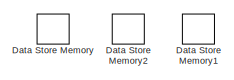
[diagram: root canvas - part 1/3, top right region]
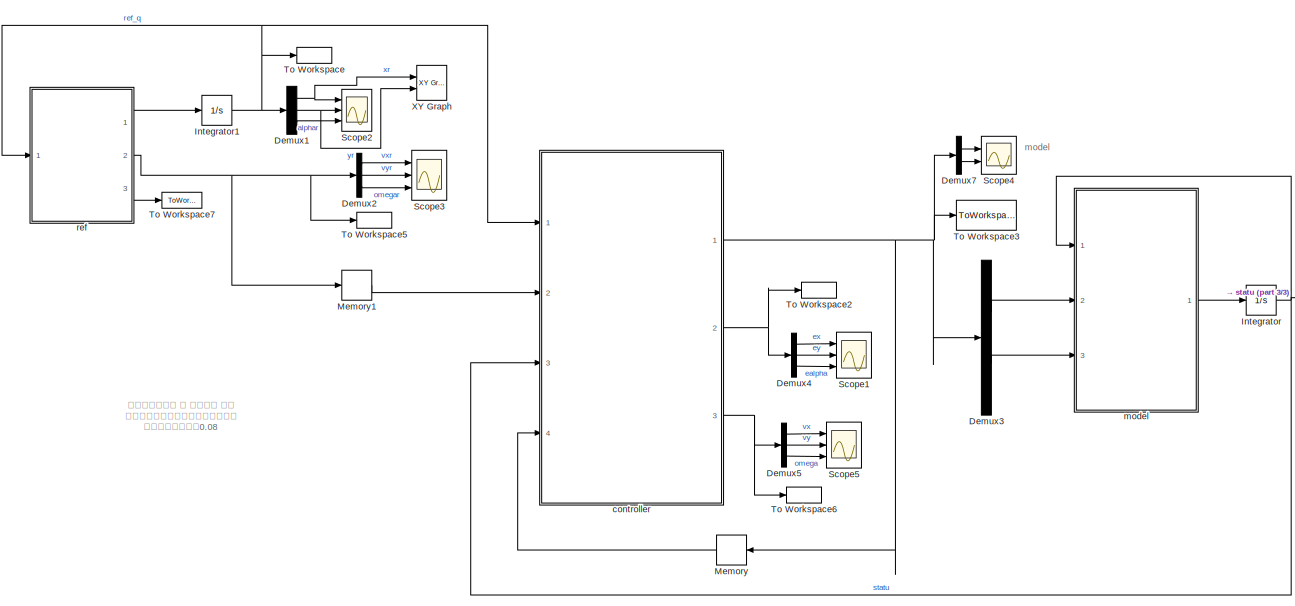
[diagram: root canvas - part 2/3, center side, full height]
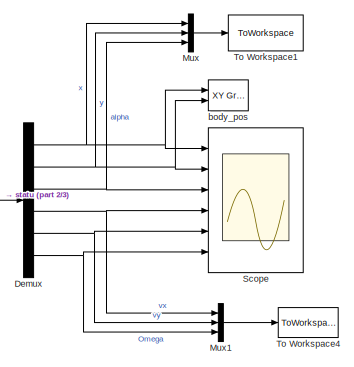
[diagram: root canvas - part 3/3, middle right region]
MODEL slx_6b4d675da11d
KIND model
CONFIG AbsTol = auto
CONFIG EnableMultiTasking = off
CONFIG FixedStep = 0.001
CONFIG MaxStep = 0.001
CONFIG MinStep = auto
CONFIG RelTol = 1e-3
CONFIG SampleTimeConstraint = Unconstrained
CONFIG Solver = ode45
CONFIG SolverName = ode45
CONFIG StartTime = 0.0
CONFIG StopTime = 20
BLOCK [DataStoreMemory] Data Store Memory
  DataStoreName = d
  OutDataTypeStr = double
  ReadBeforeWriteMsg = warning
  ShowAdditionalParam = off
  SignalType = real
  WriteAfterReadMsg = warning
  WriteAfterWriteMsg = warning
BLOCK [DataStoreMemory] Data Store Memory1
  DataStoreName = wheel_radius
  OutDataTypeStr = double
  ReadBeforeWriteMsg = warning
  ShowAdditionalParam = off
  SignalType = real
  WriteAfterReadMsg = warning
  WriteAfterWriteMsg = warning
BLOCK [DataStoreMemory] Data Store Memory2
  DataStoreName = l
  OutDataTypeStr = double
  ReadBeforeWriteMsg = warning
  ShowAdditionalParam = off
  SignalType = real
  WriteAfterReadMsg = warning
  WriteAfterWriteMsg = warning
BLOCK [Demux] Demux
  DisplayOption = bar
  Outputs = 6
  Ports = [1, 6]
BLOCK [Demux] Demux1
  DisplayOption = bar
  Outputs = 3
  Ports = [1, 3]
BLOCK [Demux] Demux2
  DisplayOption = bar
  Outputs = 3
  Ports = [1, 3]
BLOCK [Demux] Demux3
  DisplayOption = bar
  Outputs = 2
  Ports = [1, 2]
BLOCK [Demux] Demux4
  DisplayOption = bar
  Outputs = 3
  Ports = [1, 3]
BLOCK [Demux] Demux5
  DisplayOption = bar
  Outputs = 3
  Ports = [1, 3]
BLOCK [Demux] Demux7
  DisplayOption = bar
  Outputs = 2
  Ports = [1, 2]
BLOCK [Integrator] Integrator
  IgnoreLimit = on
  InitialCondition = [2; -2; pi/2; 0.0001; 0; 0]
  Ports = [1, 1]
BLOCK [Integrator] Integrator1
  InitialCondition = [0;0;pi/4]
  Ports = [1, 1]
BLOCK [Memory] Memory
  X0 = [0; 0]
BLOCK [Memory] Memory1
  X0 = [2; 0; 0.5]
BLOCK [Mux] Mux
  DisplayOption = bar
  Inputs = 3
  Ports = [3, 1]
BLOCK [Mux] Mux1
  DisplayOption = bar
  Inputs = 3
  Ports = [3, 1]
BLOCK [Scope] Scope
  NumInputPorts = 6
  Ports = [6]
  ScopeSpecificationString = Simulink.scopes.TimeScopeBlockCfg('CurrentConfiguration', extmgr.ConfigurationSet(extmgr.Configuration('Core','General UI',true),extmgr.Configuration('Core','Source UI',true),extmgr.Configuration('Sources','WiredSimulink',true,'DataLoggingVariableName','ScopeData1'),extmgr.Configuration('Visuals','Time Domain',true,'SerializedDisplays',{struct('MinYLimReal','0.10442','MaxYLimReal','7.84514','YLabe...<+2681ch>
BLOCK [Scope] Scope1
  NumInputPorts = 3
  Ports = [3]
  ScopeSpecificationString = Simulink.scopes.TimeScopeBlockCfg('CurrentConfiguration', extmgr.ConfigurationSet(extmgr.Configuration('Core','General UI',true),extmgr.Configuration('Core','Source UI',true),extmgr.Configuration('Sources','WiredSimulink',true,'DataLoggingVariableName','ScopeData2'),extmgr.Configuration('Visuals','Time Domain',true,'SerializedDisplays',{struct('MinYLimReal','-0.15654','MaxYLimReal','0.21482','YLab...<+2764ch>
BLOCK [Scope] Scope2
  NumInputPorts = 3
  Ports = [3]
  ScopeSpecificationString = Simulink.scopes.TimeScopeBlockCfg('CurrentConfiguration', extmgr.ConfigurationSet(extmgr.Configuration('Core','General UI',true),extmgr.Configuration('Core','Source UI',true),extmgr.Configuration('Sources','WiredSimulink',true,'DataLoggingVariableName','ScopeData3'),extmgr.Configuration('Visuals','Time Domain',true,'SerializedDisplays',{struct('MinYLimReal','-0.00539','MaxYLimReal','0.04853','YLab...<+2734ch>
BLOCK [Scope] Scope3
  NumInputPorts = 3
  Ports = [3]
  ScopeSpecificationString = Simulink.scopes.TimeScopeBlockCfg('CurrentConfiguration', extmgr.ConfigurationSet(extmgr.Configuration('Core','General UI',true),extmgr.Configuration('Core','Source UI',true),extmgr.Configuration('Sources','WiredSimulink',true,'DataLoggingVariableName','ScopeData4'),extmgr.Configuration('Visuals','Time Domain',true,'SerializedDisplays',{struct('MinYLimReal','0.9','MaxYLimReal','1.1','YLabelReal','...<+2734ch>
BLOCK [Scope] Scope4
  NumInputPorts = 2
  Ports = [2]
  ScopeSpecificationString = Simulink.scopes.TimeScopeBlockCfg('CurrentConfiguration', extmgr.ConfigurationSet(extmgr.Configuration('Core','General UI',true),extmgr.Configuration('Core','Source UI',true),extmgr.Configuration('Sources','WiredSimulink',true,'DataLoggingVariableName','ScopeData1'),extmgr.Configuration('Visuals','Time Domain',true,'SerializedDisplays',{struct('MinYLimReal','-3154.38477','MaxYLimReal','2134.35305'...<+2064ch>
BLOCK [Scope] Scope5
  NumInputPorts = 3
  Ports = [3]
  ScopeSpecificationString = Simulink.scopes.TimeScopeBlockCfg('CurrentConfiguration', extmgr.ConfigurationSet(extmgr.Configuration('Core','General UI',true),extmgr.Configuration('Core','Source UI',true),extmgr.Configuration('Sources','WiredSimulink',true,'DataLoggingVariableName','ScopeData1'),extmgr.Configuration('Visuals','Time Domain',true,'SerializedDisplays',{struct('MinYLimReal','-2.2833','MaxYLimReal','0.55966','YLabe...<+2803ch>
BLOCK [ToWorkspace] To Workspace
  FixptAsFi = on
  MaxDataPoints = inf
  Ports = [1]
  SampleTime = -1
  Save2DSignal = 3-D array (concatenate along third dimension)
  VariableName = ref_q
BLOCK [ToWorkspace] To Workspace1
  FixptAsFi = on
  MaxDataPoints = inf
  Ports = [1]
  SampleTime = -1
  Save2DSignal = 3-D array (concatenate along third dimension)
  VariableName = body_position
BLOCK [ToWorkspace] To Workspace2
  FixptAsFi = on
  MaxDataPoints = inf
  Ports = [1]
  SampleTime = -1
  Save2DSignal = 3-D array (concatenate along third dimension)
  VariableName = e_pos
BLOCK [ToWorkspace] To Workspace3
  FixptAsFi = on
  MaxDataPoints = inf
  Ports = [1]
  SampleTime = -1
  Save2DSignal = 3-D array (concatenate along third dimension)
  VariableName = control_u
BLOCK [ToWorkspace] To Workspace4
  FixptAsFi = on
  MaxDataPoints = inf
  Ports = [1]
  SampleTime = -1
  Save2DSignal = 3-D array (concatenate along third dimension)
  VariableName = body_vel
BLOCK [ToWorkspace] To Workspace5
  FixptAsFi = on
  MaxDataPoints = inf
  Ports = [1]
  SampleTime = -1
  Save2DSignal = 3-D array (concatenate along third dimension)
  VariableName = ref_vel
BLOCK [ToWorkspace] To Workspace6
  FixptAsFi = on
  MaxDataPoints = inf
  Ports = [1]
  SampleTime = -1
  Save2DSignal = 3-D array (concatenate along third dimension)
  VariableName = e_vel
BLOCK [ToWorkspace] To Workspace7
  FixptAsFi = on
  MaxDataPoints = inf
  Ports = [1]
  SampleTime = -1
  Save2DSignal = 3-D array (concatenate along third dimension)
  VariableName = ref_f
BLOCK [Reference] XY Graph  REF=simulink/Sinks/XY Graph
  Ports = [2]
  SourceBlock = simulink/Sinks/XY Graph
  SourceProductBaseCode = SL
  SourceProductName = Simulink
  SourceType = XY scope.
BLOCK [Reference] body_pos  REF=simulink/Sinks/XY Graph
  Ports = [2]
  SourceBlock = simulink/Sinks/XY Graph
  SourceProductBaseCode = SL
  SourceProductName = Simulink
  SourceType = XY scope.
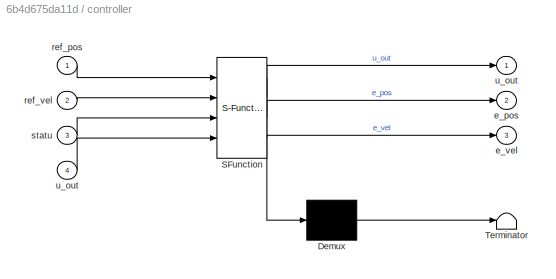
BLOCK [SubSystem] controller
  ErrorFcn = Stateflow.Translate.translate
  PermitHierarchicalResolution = ExplicitOnly
  Ports = [4, 3]
  RequestExecContextInheritance = off
  SFBlockType = MATLAB Function
  TreatAsAtomicUnit = on
  Variant = off
BLOCK [Demux] controller/ Demux 
  Outputs = 1
  Ports = [1, 1]
BLOCK [S-Function] controller/ SFunction 
  EnableBusSupport = on
  FunctionName = sf_sfun
  PortCounts = [4 4]
  Ports = [4, 4]
  SFcnIsStateOwnerBlock = off
  SFunctionDeploymentMode = off
  Tag = Stateflow S-Function sim2020_7_21 1
BLOCK [Terminator] controller/ Terminator 
BLOCK [Outport] controller/e_pos
  IconDisplay = Port number
  Port = 2
BLOCK [Outport] controller/e_vel
  IconDisplay = Port number
  Port = 3
BLOCK [Inport] controller/ref_pos
  IconDisplay = Port number
BLOCK [Inport] controller/ref_vel
  IconDisplay = Port number
  Port = 2
BLOCK [Inport] controller/statu
  IconDisplay = Port number
  Port = 3
BLOCK [Outport] controller/u_out
  IconDisplay = Port number
BLOCK [Inport] controller/u_out 
  IconDisplay = Port number
  Port = 4
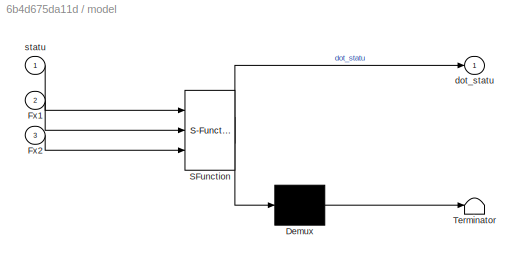
BLOCK [SubSystem] model
  ErrorFcn = Stateflow.Translate.translate
  PermitHierarchicalResolution = ExplicitOnly
  Ports = [3, 1]
  RequestExecContextInheritance = off
  SFBlockType = MATLAB Function
  TreatAsAtomicUnit = on
  Variant = off
BLOCK [Demux] model/ Demux 
  Outputs = 1
  Ports = [1, 1]
BLOCK [S-Function] model/ SFunction 
  EnableBusSupport = on
  FunctionName = sf_sfun
  PortCounts = [3 2]
  Ports = [3, 2]
  SFcnIsStateOwnerBlock = off
  SFunctionDeploymentMode = off
  Tag = Stateflow S-Function sim2020_7_21 2
BLOCK [Terminator] model/ Terminator 
BLOCK [Inport] model/Fx1
  IconDisplay = Port number
  Port = 2
BLOCK [Inport] model/Fx2
  IconDisplay = Port number
  Port = 3
BLOCK [Outport] model/dot_statu
  IconDisplay = Port number
BLOCK [Inport] model/statu
  IconDisplay = Port number
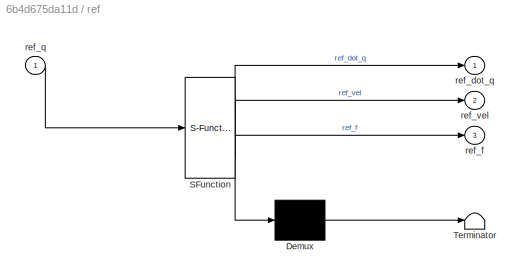
BLOCK [SubSystem] ref
  ErrorFcn = Stateflow.Translate.translate
  PermitHierarchicalResolution = ExplicitOnly
  Ports = [1, 3]
  RequestExecContextInheritance = off
  SFBlockType = MATLAB Function
  TreatAsAtomicUnit = on
  Variant = off
BLOCK [Demux] ref/ Demux 
  Outputs = 1
  Ports = [1, 1]
BLOCK [S-Function] ref/ SFunction 
  EnableBusSupport = on
  FunctionName = sf_sfun
  PortCounts = [1 4]
  Ports = [1, 4]
  SFcnIsStateOwnerBlock = off
  SFunctionDeploymentMode = off
  Tag = Stateflow S-Function sim2020_7_21 4
BLOCK [Terminator] ref/ Terminator 
BLOCK [Outport] ref/ref_dot_q
  IconDisplay = Port number
BLOCK [Outport] ref/ref_f
  IconDisplay = Port number
  Port = 3
BLOCK [Inport] ref/ref_q
  IconDisplay = Port number
BLOCK [Outport] ref/ref_vel
  IconDisplay = Port number
  Port = 2
ANNOTATION (root): model
ANNOTATION (root): 基于动力学模型 的 模型预测 控制 这个文件是：模型不加向心力的情况 具有侧向速度误差0.08
NET Demux1:1 -> Scope2:1, XY Graph:1
NET Demux1:2 -> Scope2:2, XY Graph:2
LINE Demux1:3 -> Scope2:3
LINE Demux2:1 -> Scope3:1
LINE Demux2:2 -> Scope3:2
LINE Demux2:3 -> Scope3:3
LINE Demux3:1 -> model:2
LINE Demux3:2 -> model:3
LINE Demux4:1 -> Scope1:1
LINE Demux4:2 -> Scope1:2
LINE Demux4:3 -> Scope1:3
LINE Demux5:1 -> Scope5:1
LINE Demux5:2 -> Scope5:2
LINE Demux5:3 -> Scope5:3
LINE Demux7:1 -> Scope4:1
LINE Demux7:2 -> Scope4:2
NET Demux:1 -> Mux:1, Scope:1, body_pos:1
NET Demux:2 -> Mux:2, Scope:2, body_pos:2
NET Demux:3 -> Mux:3, Scope:3
NET Demux:4 -> Mux1:1, Scope:4
NET Demux:5 -> Mux1:2, Scope:5
NET Demux:6 -> Mux1:3, Scope:6
NET Integrator1:1 -> Demux1:1, To Workspace:1, controller:1, ref:1
NET Integrator:1 -> Demux:1, controller:3, model:1
LINE Memory1:1 -> controller:2
LINE Memory:1 -> controller:4
LINE Mux1:1 -> To Workspace4:1
LINE Mux:1 -> To Workspace1:1
NET controller:1 -> Demux3:1, Demux7:1, Memory:1, To Workspace3:1
NET controller:2 -> Demux4:1, To Workspace2:1
NET controller:3 -> Demux5:1, To Workspace6:1
LINE model:1 -> Integrator:1
LINE ref:1 -> Integrator1:1
NET ref:2 -> Demux2:1, Memory1:1, To Workspace5:1
LINE ref:3 -> To Workspace7:1
note: NET lines group one-source signal fan-out (src -> all destinations, sorted); 1:1 wires keep LINE
CHART controller states=1 transitions=1
  STATE_LABEL 'eML_blk_kernel()'
  STATE_LABEL 'SCRIPT:\nfunction [u_out, e_pos, e_vel] = my_MPC_controller(ref_pos, ref_vel, statu, u_out)\n% 最近修改时间：7.25 \n% 基于动力学模型的MPC控制器\n% u_out=[fl ; fr]\n% ref_vel=[xr yr alphar vr omegar]\n% e = [ex ey ealpha]\n\nNc=15; Np=30; %预测时域Np\t控制时域Nc\nT=0.05; \n\n% 测试是否能得到\n%    statu=[2; -2; pi/2; 0.001; 0.001; 0.001];\n%    u_out=[0; 0];\n%    ref_pos=[0;0;pi/4]; ref_vel=[2; 0; 0];  \n%% 底盘参数\nd = 0.18;\tl = 0.16;\tm = 24;\tIz = ...<+3493ch>'
CHART model states=1 transitions=1
  STATE_LABEL 'eML_blk_kernel()'
  STATE_LABEL 'SCRIPT:\nfunction dot_statu = model(statu, Fx1 , Fx2 )\nglobal wheel_radius d l ;\nwheel_radius = 0.330/2;\nd = 0.18;\nl = 0.16;\nm = 24;\nIz = 11.89;\nc = 513.6; %轮胎侧偏刚度\n\n\nx = statu(1);   y = statu(2);   alpha = statu(3);\nvx = statu(4);  vy = statu(5);  omega = statu(6);\n\ndot_x = vx*cos(alpha)-vy*sin(alpha);\ndot_y = vx*sin(alpha)+vy*cos(alpha);\ndot_alpha = omega;\ndot_vx = (Fx1+Fx2)/m ;  \ndot_vy = (-2*c*(...<+493ch>'
CHART ref states=1 transitions=1
  STATE_LABEL 'eML_blk_kernel()'
  STATE_LABEL 'SCRIPT:\nfunction [ref_dot_q,ref_vel,ref_f] = fcn(ref_q)\nxr=ref_q(1);\nyr=ref_q(2);\nalphar=ref_q(3);\n\nvxr=1;\nvyr=0;\nomegar=0.5;\n\nref_vel=[vxr;vyr;omegar];\n\ndotx = vxr*cos(alphar) - vyr*sin(alphar);\ndoty = vxr*sin(alphar) + vyr*sin(alphar);\ndotalpha = omegar;\nref_dot_q=[dotx;doty;dotalpha];\n\nref_f=[0;0];\nend'
